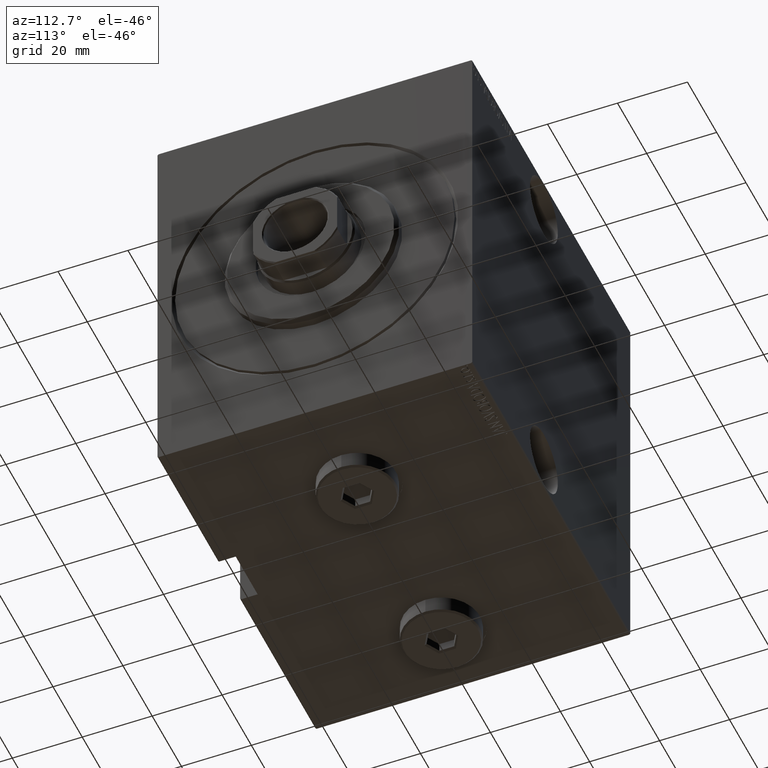
[diagram: clean part render]
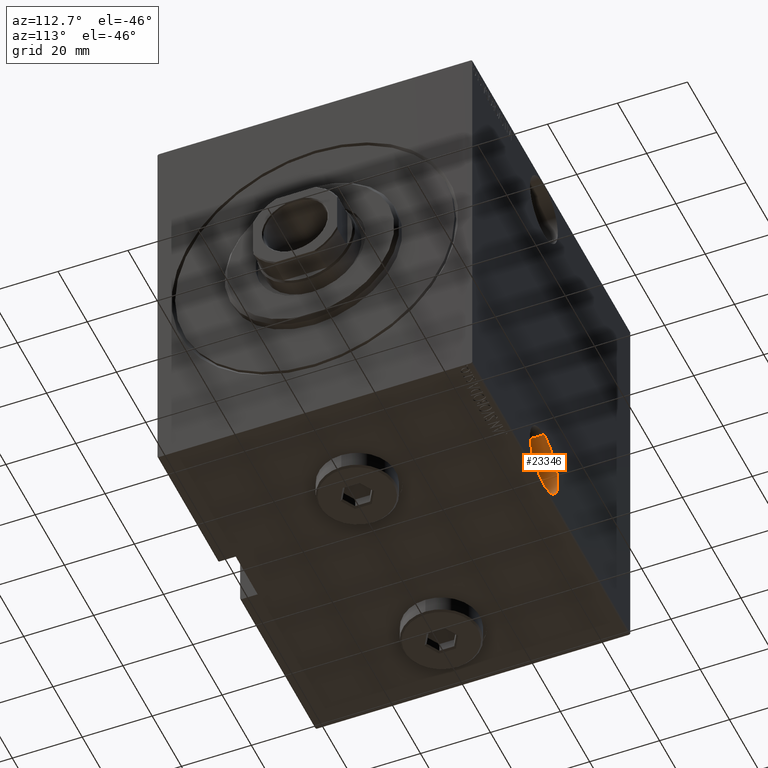
[diagram: same view with one face highlighted and labeled with its STEP entity id]
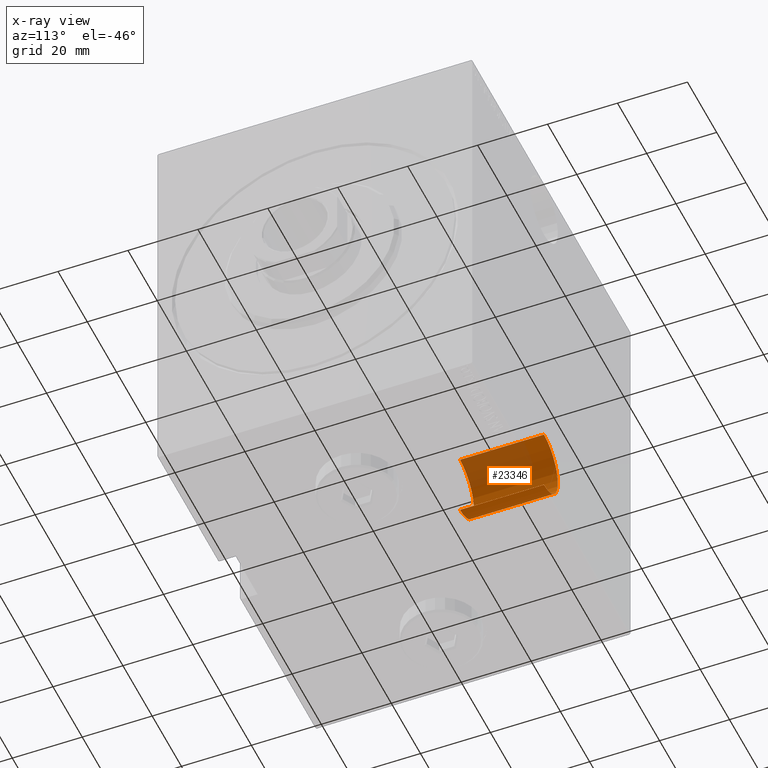
[diagram: x-ray of the same camera — body ghosted, the highlighted face saturated]
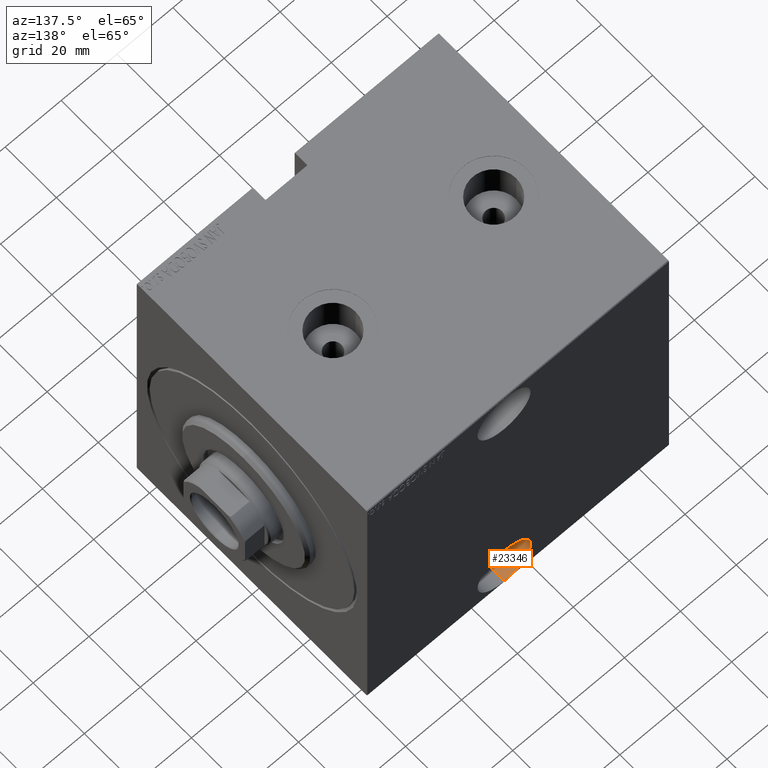
[diagram: same view with one face highlighted and labeled with its STEP entity id]
A machine part, auxiliary view. The second image highlights one B-rep face of the part: STEP entity #23346.
The next image is the same camera in x-ray: the body ghosted, the highlighted face saturated — about 37% of this face is hidden behind the body in this view.
A second angle (auxiliary view) of the same face is appended — the face is thin or edge-on in the first view.
In plain terms, the highlighted cylindrical surface (edge-blend (fillet) strip) has radius 9.5 mm, axis along (0, 1, 0).
Its self-contained STEP definition (entity closure, byte-faithful):
#302 = DIRECTION ( 'NONE',  ( 0.000000000000000000, 0.000000000000000000, -1.000000000000000000 ) ) ;
#2671 = ORIENTED_EDGE ( 'NONE', *, *, #3041, .T. ) ;
#3041 = EDGE_CURVE ( 'NONE', #7677, #41975, #19823, .T. ) ;
#3817 = CARTESIAN_POINT ( 'NONE',  ( 49.00000000000002132, -21.00000000000000000, -38.00000000000000711 ) ) ;
#5925 = DIRECTION ( 'NONE',  ( -0.000000000000000000, -1.000000000000000000, 1.963837897332234195E-16 ) ) ;
#7677 = VERTEX_POINT ( 'NONE', #33610 ) ;
#7750 = ORIENTED_EDGE ( 'NONE', *, *, #30473, .T. ) ;
#10259 = AXIS2_PLACEMENT_3D ( 'NONE', #29953, #5925, #33076 ) ;
#10327 = DIRECTION ( 'NONE',  ( 0.000000000000000000, -1.000000000000000000, 1.963837897332234442E-16 ) ) ;
#11644 = AXIS2_PLACEMENT_3D ( 'NONE', #40566, #16081, #21923 ) ;
#12363 = ORIENTED_EDGE ( 'NONE', *, *, #23755, .F. ) ;
#13657 = VERTEX_POINT ( 'NONE', #24276 ) ;
#16081 = DIRECTION ( 'NONE',  ( 0.000000000000000000, -1.000000000000000000, 1.963837897332234442E-16 ) ) ;
#17113 = VECTOR ( 'NONE', #29741, 1000.000000000000000 ) ;
#18483 = VERTEX_POINT ( 'NONE', #33159 ) ;
#19477 = CIRCLE ( 'NONE', #11644, 9.500000000000001776 ) ;
#19823 = CIRCLE ( 'NONE', #34726, 9.500000000000001776 ) ;
#20675 = EDGE_LOOP ( 'NONE', ( #12363, #32680, #7750, #2671 ) ) ;
#21649 = VECTOR ( 'NONE', #41016, 1000.000000000000000 ) ;
#21923 = DIRECTION ( 'NONE',  ( 0.000000000000000000, -3.652049423109066841E-16, -1.000000000000000000 ) ) ;
#22840 = CYLINDRICAL_SURFACE ( 'NONE', #10259, 9.500000000000001776 ) ;
#23346 = ADVANCED_FACE ( 'NONE', ( #39773 ), #22840, .F. ) ;
#23755 = EDGE_CURVE ( 'NONE', #18483, #41975, #23874, .T. ) ;
#23874 = LINE ( 'NONE', #3817, #21649 ) ;
#24276 = CARTESIAN_POINT ( 'NONE',  ( 49.00000000000002132, -21.00000000000000711, -57.00000000000000711 ) ) ;
#26627 = LINE ( 'NONE', #33288, #17113 ) ;
#27388 = CARTESIAN_POINT ( 'NONE',  ( 49.00000000000002132, -45.00000000000000711, -38.00000000000000000 ) ) ;
#29741 = DIRECTION ( 'NONE',  ( -0.000000000000000000, -1.000000000000000000, 1.963837897332234195E-16 ) ) ;
#29953 = CARTESIAN_POINT ( 'NONE',  ( 49.00000000000002132, -21.00000000000000355, -47.50000000000000711 ) ) ;
#30473 = EDGE_CURVE ( 'NONE', #13657, #7677, #26627, .T. ) ;
#32680 = ORIENTED_EDGE ( 'NONE', *, *, #43501, .F. ) ;
#33076 = DIRECTION ( 'NONE',  ( 0.000000000000000000, -3.652049423109066841E-16, -1.000000000000000000 ) ) ;
#33159 = CARTESIAN_POINT ( 'NONE',  ( 49.00000000000002132, -21.00000000000000000, -38.00000000000000711 ) ) ;
#33288 = CARTESIAN_POINT ( 'NONE',  ( 49.00000000000002132, -21.00000000000000711, -57.00000000000000711 ) ) ;
#33610 = CARTESIAN_POINT ( 'NONE',  ( 49.00000000000002132, -45.00000000000000711, -57.00000000000000000 ) ) ;
#34726 = AXIS2_PLACEMENT_3D ( 'NONE', #41277, #10327, #302 ) ;
#39773 = FACE_OUTER_BOUND ( 'NONE', #20675, .T. ) ;
#40566 = CARTESIAN_POINT ( 'NONE',  ( 49.00000000000002132, -21.00000000000000355, -47.50000000000000711 ) ) ;
#41016 = DIRECTION ( 'NONE',  ( -0.000000000000000000, -1.000000000000000000, 1.963837897332234195E-16 ) ) ;
#41277 = CARTESIAN_POINT ( 'NONE',  ( 49.00000000000002132, -45.00000000000000711, -47.50000000000000000 ) ) ;
#41975 = VERTEX_POINT ( 'NONE', #27388 ) ;
#43501 = EDGE_CURVE ( 'NONE', #13657, #18483, #19477, .T. ) ;